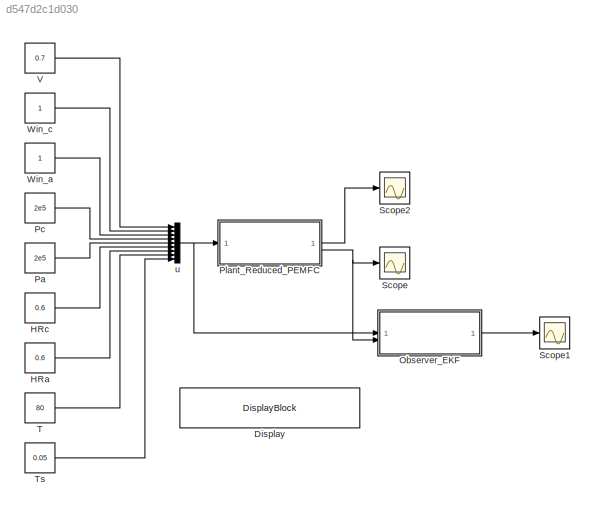
MODEL slx_d547d2c1d030
KIND model
CONFIG AbsTol = auto
CONFIG EnableMultiTasking = off
CONFIG FixedStep = auto
CONFIG MaxStep = auto
CONFIG MinStep = auto
CONFIG RelTol = 1e-3
CONFIG SampleTimeConstraint = Unconstrained
CONFIG SolverName = FixedStepDiscrete
CONFIG StartTime = 0.0
CONFIG StopTime = 10.0
BLOCK [DisplayBlock] Display
  LabelPosition = Hide
  Transparency = 1
BLOCK [Constant] HRa
  Value = 0.6
BLOCK [Constant] HRc
  Value = 0.6
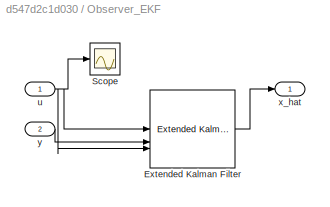
BLOCK [SubSystem] Observer_EKF
BLOCK [Reference] Observer_EKF/Extended Kalman Filter  REF=sharedTrackingLibrary/Extended Kalman Filter
  LibrarySourceBlock = cstblocks/State Estimation/Extended Kalman Filter
  SourceBlock = sharedTrackingLibrary/Extended Kalman Filter
  SourceType = Extended Kalman Filter
BLOCK [Scope] Observer_EKF/Scope
  Floating = off
  NumInputPorts = 1
  ScopeSpecificationString = Simulink.scopes.TimeScopeBlockCfg('CurrentConfiguration', extmgr.ConfigurationSet(extmgr.Configuration('Core','General UI',true),extmgr.Configuration('Core','Source UI',true),extmgr.Configuration('Sources','WiredSimulink',true,'DataLoggingVariableName','ScopeData2'),extmgr.Configuration('Visuals','Time Domain',true,'SerializedDisplays',{struct('MinYLimReal','-24999.94375','MaxYLimReal','224999.993...<+1856ch>
BLOCK [Inport] Observer_EKF/u
BLOCK [Outport] Observer_EKF/x_hat
BLOCK [Inport] Observer_EKF/y
  Port = 2
BLOCK [Constant] Pa
  Value = 2e5
BLOCK [Constant] Pc
  Value = 2e5
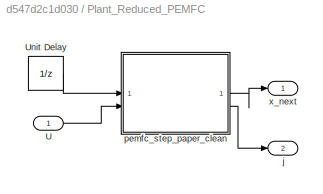
BLOCK [SubSystem] Plant_Reduced_PEMFC
BLOCK [Inport] Plant_Reduced_PEMFC/U
BLOCK [UnitDelay] Plant_Reduced_PEMFC/Unit Delay
  HasFrameUpgradeWarning = on
  InitialCondition = [10;10;10]
  SampleTime = Ts
BLOCK [Outport] Plant_Reduced_PEMFC/j
  Port = 2
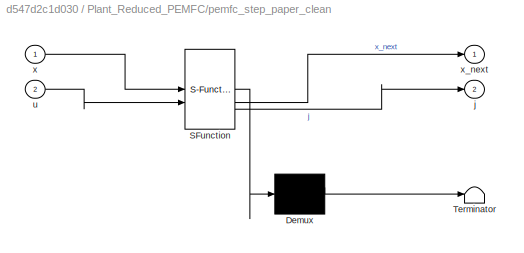
BLOCK [SubSystem] Plant_Reduced_PEMFC/pemfc_step_paper_clean
  ErrorFcn = Stateflow.Translate.translate
  PermitHierarchicalResolution = ExplicitOnly
  SFBlockType = MATLAB Function
  TreatAsAtomicUnit = on
BLOCK [Demux] Plant_Reduced_PEMFC/pemfc_step_paper_clean/ Demux 
  Outputs = 1
BLOCK [S-Function] Plant_Reduced_PEMFC/pemfc_step_paper_clean/ SFunction 
  EnableBusSupport = on
  FunctionName = sf_sfun
  PortCounts = [2 3]
  SFcnIsStateOwnerBlock = off
  SFunctionDeploymentMode = off
  Tag = Stateflow S-Function 1
BLOCK [Terminator] Plant_Reduced_PEMFC/pemfc_step_paper_clean/ Terminator 
BLOCK [Outport] Plant_Reduced_PEMFC/pemfc_step_paper_clean/j
  Port = 2
BLOCK [Inport] Plant_Reduced_PEMFC/pemfc_step_paper_clean/u
  Port = 2
BLOCK [Inport] Plant_Reduced_PEMFC/pemfc_step_paper_clean/x
BLOCK [Outport] Plant_Reduced_PEMFC/pemfc_step_paper_clean/x_next
BLOCK [Outport] Plant_Reduced_PEMFC/x_next
BLOCK [Scope] Scope
  Floating = off
  NumInputPorts = 1
  ScopeSpecificationString = Simulink.scopes.TimeScopeBlockCfg('CurrentConfiguration', extmgr.ConfigurationSet(extmgr.Configuration('Core','General UI',true),extmgr.Configuration('Core','Source UI',true),extmgr.Configuration('Sources','WiredSimulink',true),extmgr.Configuration('Visuals','Time Domain',true,'SerializedDisplays',{struct('MinYLimReal','0.000011','MaxYLimReal','0.000031','YLabelReal','','MinYLimMag','0.000011','Ma...<+1436ch>
BLOCK [Scope] Scope1
  Floating = off
  NumInputPorts = 1
  ScopeSpecificationString = Simulink.scopes.TimeScopeBlockCfg('CurrentConfiguration', extmgr.ConfigurationSet(extmgr.Configuration('Core','General UI',true),extmgr.Configuration('Core','Source UI',true),extmgr.Configuration('Sources','WiredSimulink',true,'DataLoggingVariableName','ScopeData1'),extmgr.Configuration('Visuals','Time Domain',true,'SerializedDisplays',{struct('MinYLimReal','9.00000','MaxYLimReal','11.00000','YLab...<+1531ch>
BLOCK [Scope] Scope2
  Floating = off
  NumInputPorts = 1
  ScopeSpecificationString = Simulink.scopes.TimeScopeBlockCfg('CurrentConfiguration', extmgr.ConfigurationSet(extmgr.Configuration('Core','General UI',true),extmgr.Configuration('Core','Source UI',true),extmgr.Configuration('Sources','WiredSimulink',true,'DataLoggingVariableName','ScopeData3'),extmgr.Configuration('Visuals','Time Domain',true,'SerializedDisplays',{struct('MinYLimReal','-1.25','MaxYLimReal','11.25','YLabelRea...<+1524ch>
BLOCK [Constant] T
  SampleTime = Ts
  Value = 80
BLOCK [Constant] Ts
  Value = 0.05
BLOCK [Constant] V
  Value = 0.7
BLOCK [Constant] Win_a
BLOCK [Constant] Win_c
BLOCK [Mux] u
  DisplayOption = bar
  Inputs = 9
LINE HRa:1 -> u:7
LINE HRc:1 -> u:6
LINE Observer_EKF/Extended Kalman Filter:1 -> Observer_EKF/x_hat:1
NET Observer_EKF/u:1 -> Observer_EKF/Extended Kalman Filter:1, Observer_EKF/Extended Kalman Filter:3, Observer_EKF/Scope:1
LINE Observer_EKF/y:1 -> Observer_EKF/Extended Kalman Filter:2
LINE Observer_EKF:1 -> Scope1:1
LINE Pa:1 -> u:5
LINE Pc:1 -> u:4
LINE Plant_Reduced_PEMFC/U:1 -> Plant_Reduced_PEMFC/pemfc_step_paper_clean:2
LINE Plant_Reduced_PEMFC/Unit Delay:1 -> Plant_Reduced_PEMFC/pemfc_step_paper_clean:1
LINE Plant_Reduced_PEMFC/pemfc_step_paper_clean:1 -> Plant_Reduced_PEMFC/x_next:1
LINE Plant_Reduced_PEMFC/pemfc_step_paper_clean:2 -> Plant_Reduced_PEMFC/j:1
LINE Plant_Reduced_PEMFC:1 -> Scope2:1
NET Plant_Reduced_PEMFC:2 -> Observer_EKF:2, Scope:1
LINE T:1 -> u:8
LINE Ts:1 -> u:9
LINE V:1 -> u:1
LINE Win_a:1 -> u:3
LINE Win_c:1 -> u:2
NET u:1 -> Observer_EKF:1, Plant_Reduced_PEMFC:1
note: NET lines group one-source signal fan-out (src -> all destinations, sorted); 1:1 wires keep LINE
CHART Plant_Reduced_PEMFC/pemfc_step_paper_clean states=1 transitions=1
  STATE_LABEL 'eML_blk_kernel()'
  STATE_LABEL 'SCRIPT:\nfunction [x_next, j] = pemfc_step_stub(x, u)\n%#codegen\n[x_next, j] = pemfc_step_paper_clean(x, u);\nend'
CHART  states=0 transitions=0
